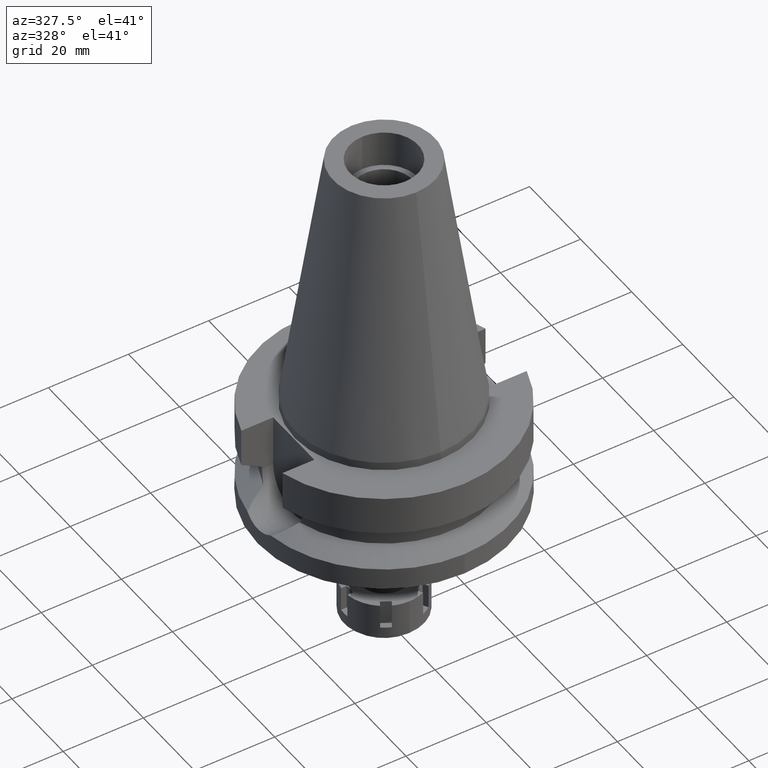
[diagram: clean part render]
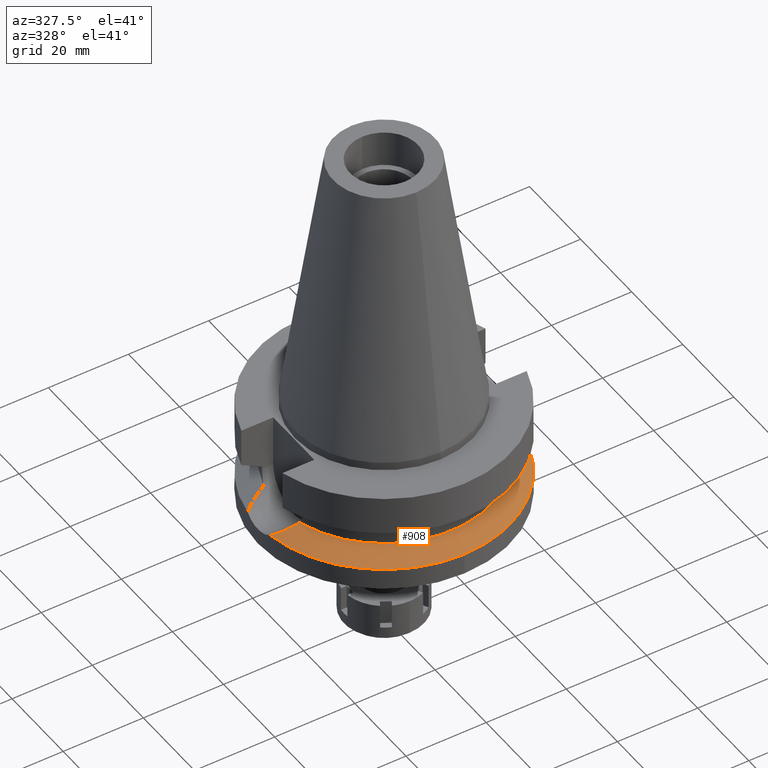
[diagram: same view with one face highlighted and labeled with its STEP entity id]
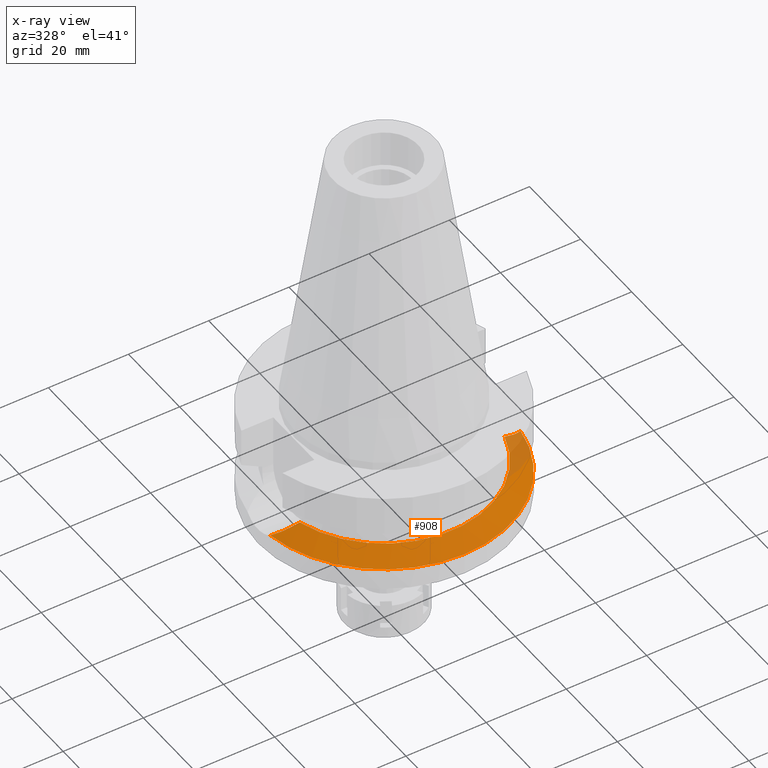
[diagram: x-ray of the same camera — body ghosted, the highlighted face saturated]
A machine part, auxiliary view. The second image highlights one B-rep face of the part: STEP entity #908.
The next image is the same camera in x-ray: the body ghosted, the highlighted face saturated — about 9% of this face is hidden behind the body in this view.
In plain terms, the highlighted conical surface has half-angle 60 deg.
Its self-contained STEP definition (entity closure, byte-faithful):
#26 = CARTESIAN_POINT ( 'NONE',  ( -29.71952981874267863, -5.434338939097333565, -20.89092339076770699 ) ) ;
#80 = CARTESIAN_POINT ( 'NONE',  ( 0.0000000000000000000, 0.0000000000000000000, -18.74774300138999905 ) ) ;
#103 = CARTESIAN_POINT ( 'NONE',  ( 26.17344645226387811, -6.921471366445529405, -19.07741195887368946 ) ) ;
#124 = CARTESIAN_POINT ( 'NONE',  ( 31.17899877608999759, -4.485536235554000051, -21.63449434733000132 ) ) ;
#168 = CARTESIAN_POINT ( 'NONE',  ( 31.17899877608999759, -4.485536235554000051, -21.63449434733000132 ) ) ;
#189 = VERTEX_POINT ( 'NONE', #2692 ) ;
#208 = CARTESIAN_POINT ( 'NONE',  ( 28.65020815745683791, -5.974868762511803766, -20.34503524544521014 ) ) ;
#306 = EDGE_CURVE ( 'NONE', #189, #541, #412, .T. ) ;
#315 = B_SPLINE_CURVE_WITH_KNOTS ( 'NONE', 3,
 ( #3306, #866, #1400, #2509, #26, #1691, #1704, #914, #3378, #3090, #2826, #353, #627, #1722 ),
 .UNSPECIFIED., .F., .F.,
 ( 4, 2, 2, 1, 1, 2, 2, 4 ),
 ( 0.0000000000000000000, 0.2500000000000029976, 0.3750000000000040523, 0.4375000000000056066, 0.4687500000000068834, 0.4843750000000082157, 0.5000000000000095479, 1.000000000000000000 ),
 .UNSPECIFIED. ) ;
#353 = CARTESIAN_POINT ( 'NONE',  ( -27.92343940012868231, -6.323686140930536936, -19.97389465804193520 ) ) ;
#401 = EDGE_CURVE ( 'NONE', #541, #736, #2454, .T. ) ;
#412 = CIRCLE ( 'NONE', #2323, 26.49999999999998224 ) ;
#434 = CARTESIAN_POINT ( 'NONE',  ( 0.0000000000000000000, -31.50000000000000000, -21.63449434733000132 ) ) ;
#525 = DIRECTION ( 'NONE',  ( 0.0000000000000000000, 0.0000000000000000000, -1.000000000000000000 ) ) ;
#541 = VERTEX_POINT ( 'NONE', #3110 ) ;
#554 = EDGE_LOOP ( 'NONE', ( #2797, #1201, #3176, #1585, #1027 ) ) ;
#574 = CARTESIAN_POINT ( 'NONE',  ( -31.17899877608999759, -4.485536235554000051, -21.63449434733000132 ) ) ;
#627 = CARTESIAN_POINT ( 'NONE',  ( -26.81513166769707723, -6.745083096437391568, -19.40707608762066272 ) ) ;
#665 = CARTESIAN_POINT ( 'NONE',  ( 28.79825562370674064, -5.905512656693689522, -20.42063434505087471 ) ) ;
#701 = CIRCLE ( 'NONE', #3520, 31.50000000000001421 ) ;
#707 = CARTESIAN_POINT ( 'NONE',  ( 28.25157443744487651, -6.152927132182752779, -20.14144859418937017 ) ) ;
#736 = VERTEX_POINT ( 'NONE', #168 ) ;
#777 = CARTESIAN_POINT ( 'NONE',  ( 26.77137749087828311, -6.727764462299879789, -19.38421658049827556 ) ) ;
#817 = DIRECTION ( 'NONE',  ( 0.9898094849552905306, -0.1423979757318985240, 0.0000000000000000000 ) ) ;
#851 = DIRECTION ( 'NONE',  ( 0.0000000000000000000, 0.0000000000000000000, 1.000000000000000000 ) ) ;
#866 = CARTESIAN_POINT ( 'NONE',  ( -30.85648799744268089, -4.730215051262398163, -21.47030605770293121 ) ) ;
#908 = ADVANCED_FACE ( 'NONE', ( #3211 ), #2927, .T. ) ;
#914 = CARTESIAN_POINT ( 'NONE',  ( -29.05248392909362209, -5.782743132627538252, -20.55045431323483740 ) ) ;
#954 = CARTESIAN_POINT ( 'NONE',  ( 28.43887305976008051, -6.071321592951393065, -20.23711661325022959 ) ) ;
#958 = DIRECTION ( 'NONE',  ( 0.0000000000000000000, -1.000000000000000000, 0.0000000000000000000 ) ) ;
#1027 = ORIENTED_EDGE ( 'NONE', *, *, #1739, .F. ) ;
#1188 = AXIS2_PLACEMENT_3D ( 'NONE', #2465, #2950, #2680 ) ;
#1201 = ORIENTED_EDGE ( 'NONE', *, *, #1651, .F. ) ;
#1227 = VERTEX_POINT ( 'NONE', #434 ) ;
#1400 = CARTESIAN_POINT ( 'NONE',  ( -30.50170562969860200, -4.970296208793001824, -21.28970313500322575 ) ) ;
#1467 = CARTESIAN_POINT ( 'NONE',  ( 28.82853337680994699, -5.891149636959518432, -20.43609566061735094 ) ) ;
#1585 = ORIENTED_EDGE ( 'NONE', *, *, #306, .F. ) ;
#1641 = CARTESIAN_POINT ( 'NONE',  ( 0.0000000000000000000, 0.0000000000000000000, -21.63449434733000132 ) ) ;
#1651 = EDGE_CURVE ( 'NONE', #736, #1227, #701, .T. ) ;
#1691 = CARTESIAN_POINT ( 'NONE',  ( -29.40503565928943885, -5.603133793601939416, -20.73043417927977572 ) ) ;
#1704 = CARTESIAN_POINT ( 'NONE',  ( -29.24476311808500384, -5.686730281438806323, -20.64862627953923280 ) ) ;
#1722 = CARTESIAN_POINT ( 'NONE',  ( -25.53175183775000079, -7.097862220092999941, -18.74774300138999905 ) ) ;
#1739 = EDGE_CURVE ( 'NONE', #3460, #189, #315, .T. ) ;
#1760 = CARTESIAN_POINT ( 'NONE',  ( 28.73924177896880394, -5.933286393972125872, -20.39049928248546095 ) ) ;
#1789 = AXIS2_PLACEMENT_3D ( 'NONE', #2401, #3493, #958 ) ;
#1851 = CIRCLE ( 'NONE', #1789, 31.50000000000000000 ) ;
#2143 = CARTESIAN_POINT ( 'NONE',  ( 29.75990020538821668, -5.446053283697988689, -20.91171095774035393 ) ) ;
#2260 = DIRECTION ( 'NONE',  ( -0.9634623335000935818, -0.2678438573619981722, 0.0000000000000000000 ) ) ;
#2323 = AXIS2_PLACEMENT_3D ( 'NONE', #80, #851, #2260 ) ;
#2401 = CARTESIAN_POINT ( 'NONE',  ( 0.0000000000000000000, 0.0000000000000000000, -21.63449434733000132 ) ) ;
#2454 = B_SPLINE_CURVE_WITH_KNOTS ( 'NONE', 3,
 ( #3423, #103, #777, #3440, #2599, #707, #954, #208, #1760, #665, #1467, #2143, #2967, #124 ),
 .UNSPECIFIED., .F., .F.,
 ( 4, 2, 2, 1, 1, 2, 2, 4 ),
 ( 0.0000000000000000000, 0.2500000000000147660, 0.3750000000000221489, 0.4375000000000257572, 0.4687500000000270894, 0.4843750000000270339, 0.5000000000000269784, 1.000000000000000000 ),
 .UNSPECIFIED. ) ;
#2465 = CARTESIAN_POINT ( 'NONE',  ( 0.0000000000000000000, 0.0000000000000000000, -20.19111867435999841 ) ) ;
#2509 = CARTESIAN_POINT ( 'NONE',  ( -29.92112469443730660, -5.319673980763831800, -20.99374584170795544 ) ) ;
#2599 = CARTESIAN_POINT ( 'NONE',  ( 27.86877152233327948, -6.314475418614812874, -19.94584861539610898 ) ) ;
#2629 = EDGE_CURVE ( 'NONE', #1227, #3460, #1851, .T. ) ;
#2680 = DIRECTION ( 'NONE',  ( 0.0000000000000000000, -1.000000000000000000, 0.0000000000000000000 ) ) ;
#2692 = CARTESIAN_POINT ( 'NONE',  ( -25.53175183775000079, -7.097862220092999941, -18.74774300138999905 ) ) ;
#2797 = ORIENTED_EDGE ( 'NONE', *, *, #2629, .F. ) ;
#2826 = CARTESIAN_POINT ( 'NONE',  ( -28.88583864863592154, -5.863763670847941256, -20.46535961216053323 ) ) ;
#2927 = CONICAL_SURFACE ( 'NONE', #1188, 29.00000000000000000, 1.047197551196400456 ) ;
#2950 = DIRECTION ( 'NONE',  ( 0.0000000000000000000, 0.0000000000000000000, -1.000000000000000000 ) ) ;
#2967 = CARTESIAN_POINT ( 'NONE',  ( 30.53398092607168479, -4.974891054369684262, -21.30611965542906461 ) ) ;
#3090 = CARTESIAN_POINT ( 'NONE',  ( -28.91299861602918497, -5.850685027413161876, -20.47922894834007224 ) ) ;
#3110 = CARTESIAN_POINT ( 'NONE',  ( 25.53175183775000079, -7.097862220092999941, -18.74774300138999905 ) ) ;
#3176 = ORIENTED_EDGE ( 'NONE', *, *, #401, .F. ) ;
#3211 = FACE_OUTER_BOUND ( 'NONE', #554, .T. ) ;
#3306 = CARTESIAN_POINT ( 'NONE',  ( -31.17899877608999759, -4.485536235554000051, -21.63449434733000132 ) ) ;
#3378 = CARTESIAN_POINT ( 'NONE',  ( -28.96894401432885857, -5.823554090654554649, -20.50779684824653515 ) ) ;
#3423 = CARTESIAN_POINT ( 'NONE',  ( 25.53175183775000079, -7.097862220092999941, -18.74774300138999905 ) ) ;
#3440 = CARTESIAN_POINT ( 'NONE',  ( 27.60262868495067323, -6.419959860525380257, -19.80975958510095580 ) ) ;
#3460 = VERTEX_POINT ( 'NONE', #574 ) ;
#3493 = DIRECTION ( 'NONE',  ( 0.0000000000000000000, 0.0000000000000000000, -1.000000000000000000 ) ) ;
#3520 = AXIS2_PLACEMENT_3D ( 'NONE', #1641, #525, #817 ) ;